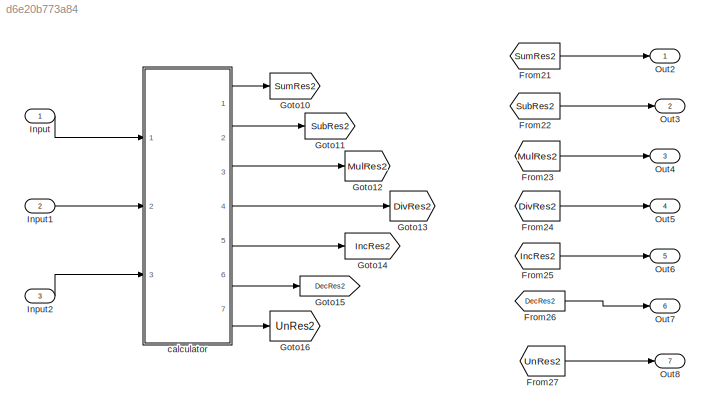
MODEL slx_d6e20b773a84
KIND model
CONFIG AbsTol = auto
CONFIG EnableMultiTasking = off
CONFIG FixedStep = auto
CONFIG MaxStep = auto
CONFIG MinStep = auto
CONFIG RelTol = 1e-3
CONFIG SampleTimeConstraint = Unconstrained
CONFIG SolverName = FixedStepAuto
CONFIG StartTime = 0.0
CONFIG StopTime = 10.0
BLOCK [From] From21
  GotoTag = SumRes2
BLOCK [From] From22
  GotoTag = SubRes2
BLOCK [From] From23
  GotoTag = MulRes2
BLOCK [From] From24
  GotoTag = DivRes2
BLOCK [From] From25
  GotoTag = IncRes2
BLOCK [From] From26
  GotoTag = DecRes2
BLOCK [From] From27
  GotoTag = UnRes2
BLOCK [Goto] Goto10
  GotoTag = SumRes2
BLOCK [Goto] Goto11
  GotoTag = SubRes2
BLOCK [Goto] Goto12
  GotoTag = MulRes2
BLOCK [Goto] Goto13
  GotoTag = DivRes2
BLOCK [Goto] Goto14
  GotoTag = IncRes2
BLOCK [Goto] Goto15
  GotoTag = DecRes2
BLOCK [Goto] Goto16
  GotoTag = UnRes2
BLOCK [Inport] Input
BLOCK [Inport] Input1
  Port = 2
BLOCK [Inport] Input2
  Port = 3
BLOCK [Outport] Out2
BLOCK [Outport] Out3
  Port = 2
BLOCK [Outport] Out4
  Port = 3
BLOCK [Outport] Out5
  Port = 4
BLOCK [Outport] Out6
  Port = 5
BLOCK [Outport] Out7
  Port = 6
BLOCK [Outport] Out8
  Port = 7
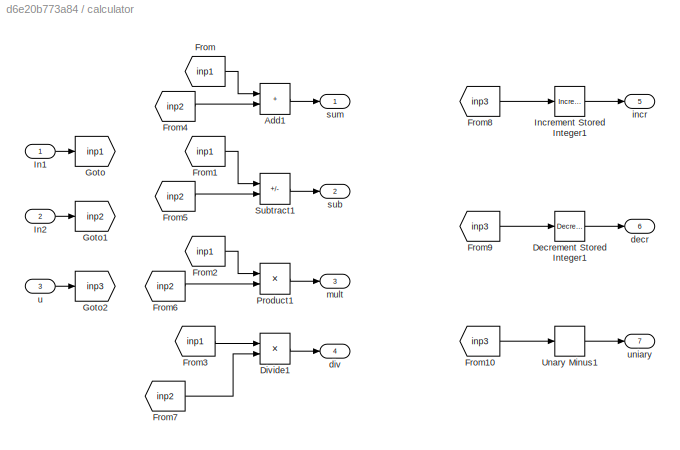
BLOCK [SubSystem] calculator
  Ports = [3, 7]
  RequestExecContextInheritance = off
BLOCK [Sum] calculator/Add1
  IconShape = rectangular
  Ports = [2, 1]
BLOCK [Reference] calculator/Decrement Stored Integer1  REF=simulink/Additional Math
& Discrete/Additional Math:
Increment - Decrement/Decrement
Stored Integer
  Ports = [1, 1]
  SourceBlock = simulink/Additional Math\n& Discrete/Additional Math:\nIncrement - Decrement/Decrement\nStored Integer
  SourceProductBaseCode = SL
  SourceType = Stored Integer Value Decrement
BLOCK [Product] calculator/Divide1
  Inputs = */
  Ports = [2, 1]
BLOCK [From] calculator/From
  GotoTag = inp1
BLOCK [From] calculator/From1
  GotoTag = inp1
BLOCK [From] calculator/From10
  GotoTag = inp3
BLOCK [From] calculator/From2
  GotoTag = inp1
BLOCK [From] calculator/From3
  GotoTag = inp1
BLOCK [From] calculator/From4
  GotoTag = inp2
BLOCK [From] calculator/From5
  GotoTag = inp2
BLOCK [From] calculator/From6
  GotoTag = inp2
BLOCK [From] calculator/From7
  GotoTag = inp2
BLOCK [From] calculator/From8
  GotoTag = inp3
BLOCK [From] calculator/From9
  GotoTag = inp3
BLOCK [Goto] calculator/Goto
  GotoTag = inp1
BLOCK [Goto] calculator/Goto1
  GotoTag = inp2
BLOCK [Goto] calculator/Goto2
  GotoTag = inp3
BLOCK [Inport] calculator/In1
BLOCK [Inport] calculator/In2
  Port = 2
BLOCK [Reference] calculator/Increment Stored Integer1  REF=simulink/Additional Math
& Discrete/Additional Math:
Increment - Decrement/Increment
Stored Integer
  Ports = [1, 1]
  SourceBlock = simulink/Additional Math\n& Discrete/Additional Math:\nIncrement - Decrement/Increment\nStored Integer
  SourceProductBaseCode = SL
  SourceType = Stored Integer Value Increment
BLOCK [Product] calculator/Product1
  Ports = [2, 1]
BLOCK [Sum] calculator/Subtract1
  IconShape = rectangular
  Inputs = +-
  Ports = [2, 1]
BLOCK [UnaryMinus] calculator/Unary Minus1
BLOCK [Outport] calculator/decr
  Port = 6
BLOCK [Outport] calculator/div
  Port = 4
BLOCK [Outport] calculator/incr
  Port = 5
BLOCK [Outport] calculator/mult
  Port = 3
BLOCK [Outport] calculator/sub
  Port = 2
BLOCK [Outport] calculator/sum
BLOCK [Inport] calculator/u
  Port = 3
BLOCK [Outport] calculator/uniary
  Port = 7
LINE From21:1 -> Out2:1
LINE From22:1 -> Out3:1
LINE From23:1 -> Out4:1
LINE From24:1 -> Out5:1
LINE From25:1 -> Out6:1
LINE From26:1 -> Out7:1
LINE From27:1 -> Out8:1
LINE Input1:1 -> calculator:2
LINE Input2:1 -> calculator:3
LINE Input:1 -> calculator:1
LINE calculator/Add1:1 -> calculator/sum:1
LINE calculator/Decrement Stored Integer1:1 -> calculator/decr:1
LINE calculator/Divide1:1 -> calculator/div:1
LINE calculator/From10:1 -> calculator/Unary Minus1:1
LINE calculator/From1:1 -> calculator/Subtract1:1
LINE calculator/From2:1 -> calculator/Product1:1
LINE calculator/From3:1 -> calculator/Divide1:1
LINE calculator/From4:1 -> calculator/Add1:2
LINE calculator/From5:1 -> calculator/Subtract1:2
LINE calculator/From6:1 -> calculator/Product1:2
LINE calculator/From7:1 -> calculator/Divide1:2
LINE calculator/From8:1 -> calculator/Increment Stored Integer1:1
LINE calculator/From9:1 -> calculator/Decrement Stored Integer1:1
LINE calculator/From:1 -> calculator/Add1:1
LINE calculator/In1:1 -> calculator/Goto:1
LINE calculator/In2:1 -> calculator/Goto1:1
LINE calculator/Increment Stored Integer1:1 -> calculator/incr:1
LINE calculator/Product1:1 -> calculator/mult:1
LINE calculator/Subtract1:1 -> calculator/sub:1
LINE calculator/Unary Minus1:1 -> calculator/uniary:1
LINE calculator/u:1 -> calculator/Goto2:1
LINE calculator:1 -> Goto10:1
LINE calculator:2 -> Goto11:1
LINE calculator:3 -> Goto12:1
LINE calculator:4 -> Goto13:1
LINE calculator:5 -> Goto14:1
LINE calculator:6 -> Goto15:1
LINE calculator:7 -> Goto16:1
